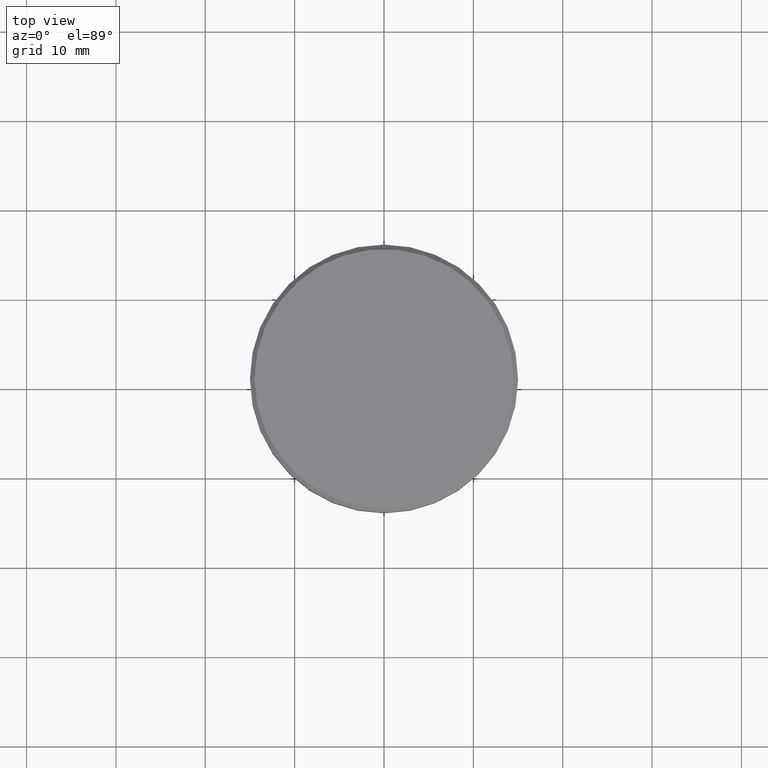
[diagram: clean part render]
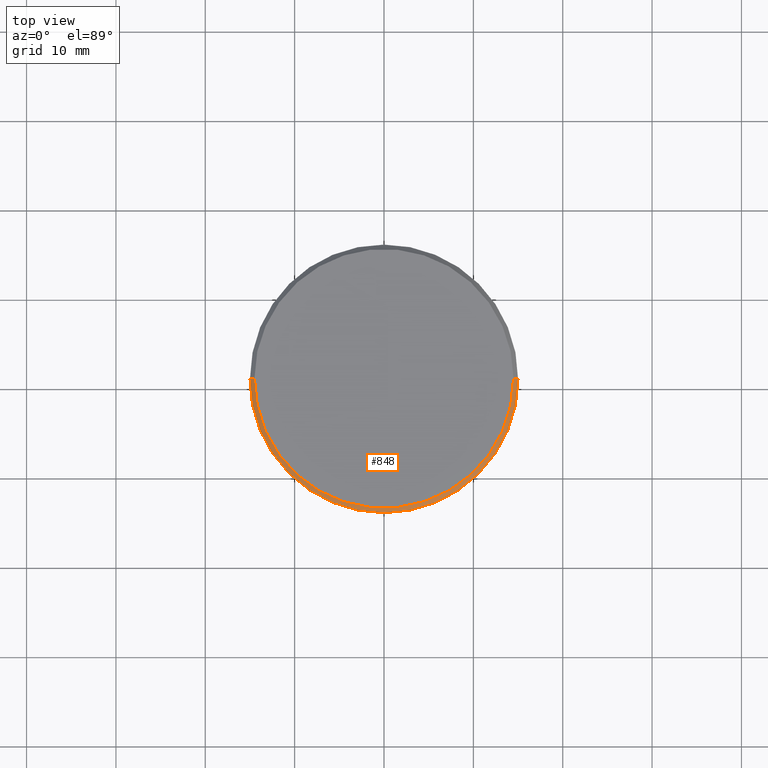
[diagram: same view with one face highlighted and labeled with its STEP entity id]
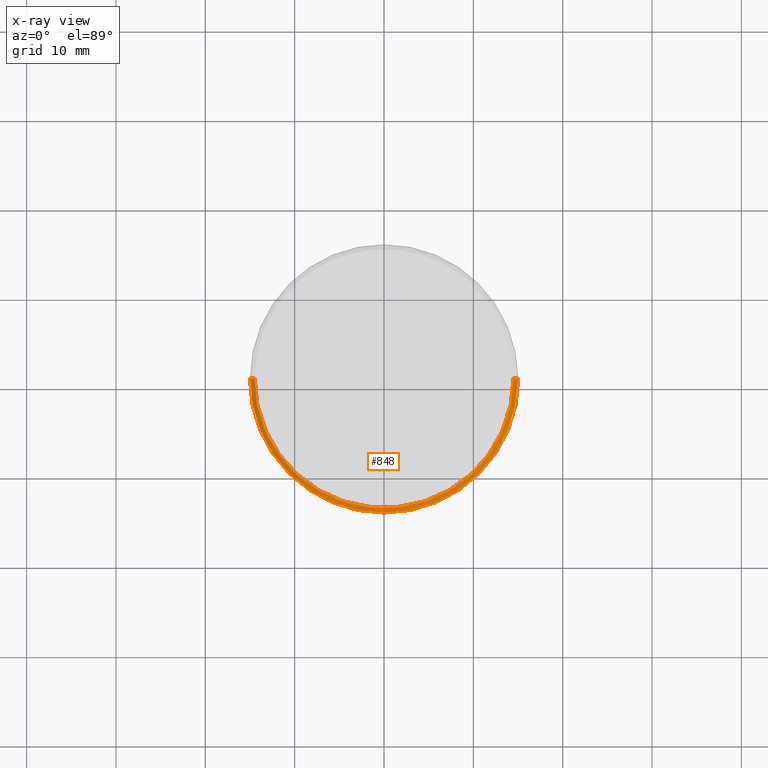
[diagram: x-ray of the same camera — body ghosted, the highlighted face saturated]
A machine part, top view. The second image highlights one B-rep face of the part: STEP entity #848.
The next image is the same camera in x-ray: the body ghosted, the highlighted face saturated — about 0% of this face is hidden behind the body in this view.
In plain terms, the highlighted conical surface has half-angle 45 deg.
Its self-contained STEP definition (entity closure, byte-faithful):
#43 = CARTESIAN_POINT ( 'NONE',  ( 0.000000000000000000, 0.000000000000000000, 0.000000000000000000 ) ) ;
#47 = CONICAL_SURFACE ( 'NONE', #865, 14.50000000000001066, 0.7853981633974466137 ) ;
#90 = EDGE_CURVE ( 'NONE', #880, #951, #148, .T. ) ;
#113 = DIRECTION ( 'NONE',  ( -1.000000000000000000, 0.000000000000000000, 0.000000000000000000 ) ) ;
#148 = LINE ( 'NONE', #356, #193 ) ;
#193 = VECTOR ( 'NONE', #810, 1000.000000000000000 ) ;
#226 = ORIENTED_EDGE ( 'NONE', *, *, #427, .F. ) ;
#253 = AXIS2_PLACEMENT_3D ( 'NONE', #890, #703, #515 ) ;
#323 = CARTESIAN_POINT ( 'NONE',  ( -14.50000000000001066, 0.000000000000000000, 0.000000000000000000 ) ) ;
#356 = CARTESIAN_POINT ( 'NONE',  ( -14.50000000000001066, 0.000000000000000000, 0.000000000000000000 ) ) ;
#382 = EDGE_CURVE ( 'NONE', #862, #1040, #658, .T. ) ;
#394 = ORIENTED_EDGE ( 'NONE', *, *, #537, .F. ) ;
#397 = DIRECTION ( 'NONE',  ( 1.000000000000000000, 0.000000000000000000, 0.000000000000000000 ) ) ;
#406 = FACE_OUTER_BOUND ( 'NONE', #423, .T. ) ;
#423 = EDGE_LOOP ( 'NONE', ( #709, #226, #855, #394 ) ) ;
#427 = EDGE_CURVE ( 'NONE', #880, #862, #879, .T. ) ;
#466 = AXIS2_PLACEMENT_3D ( 'NONE', #599, #581, #397 ) ;
#515 = DIRECTION ( 'NONE',  ( 1.000000000000000000, 0.000000000000000000, 0.000000000000000000 ) ) ;
#537 = EDGE_CURVE ( 'NONE', #1040, #951, #673, .T. ) ;
#581 = DIRECTION ( 'NONE',  ( -0.000000000000000000, -0.000000000000000000, 1.000000000000000000 ) ) ;
#588 = CARTESIAN_POINT ( 'NONE',  ( 14.50000000000001066, 1.775737858763663593E-15, 0.000000000000000000 ) ) ;
#599 = CARTESIAN_POINT ( 'NONE',  ( 0.000000000000000000, 0.000000000000000000, 0.000000000000000000 ) ) ;
#658 = LINE ( 'NONE', #588, #711 ) ;
#673 = CIRCLE ( 'NONE', #253, 15.00000000000000000 ) ;
#703 = DIRECTION ( 'NONE',  ( 0.000000000000000000, 0.000000000000000000, -1.000000000000000000 ) ) ;
#709 = ORIENTED_EDGE ( 'NONE', *, *, #382, .F. ) ;
#711 = VECTOR ( 'NONE', #837, 1000.000000000000000 ) ;
#810 = DIRECTION ( 'NONE',  ( -0.7071067811865463515, 0.000000000000000000, -0.7071067811865487940 ) ) ;
#837 = DIRECTION ( 'NONE',  ( 0.7071067811865463515, 8.659560562354918067E-17, -0.7071067811865487940 ) ) ;
#845 = CARTESIAN_POINT ( 'NONE',  ( 14.50000000000001066, 1.806354028742346591E-15, 0.000000000000000000 ) ) ;
#848 = ADVANCED_FACE ( 'NONE', ( #406 ), #47, .T. ) ;
#855 = ORIENTED_EDGE ( 'NONE', *, *, #90, .T. ) ;
#862 = VERTEX_POINT ( 'NONE', #845 ) ;
#865 = AXIS2_PLACEMENT_3D ( 'NONE', #43, #1119, #113 ) ;
#868 = CARTESIAN_POINT ( 'NONE',  ( -15.00000000000000000, 1.836970198721029589E-15, -0.4999999999999900080 ) ) ;
#879 = CIRCLE ( 'NONE', #466, 14.50000000000001066 ) ;
#880 = VERTEX_POINT ( 'NONE', #323 ) ;
#890 = CARTESIAN_POINT ( 'NONE',  ( 0.000000000000000000, 0.000000000000000000, -0.4999999999999900080 ) ) ;
#951 = VERTEX_POINT ( 'NONE', #868 ) ;
#1040 = VERTEX_POINT ( 'NONE', #1055 ) ;
#1055 = CARTESIAN_POINT ( 'NONE',  ( 15.00000000000000000, 0.000000000000000000, -0.4999999999999900080 ) ) ;
#1119 = DIRECTION ( 'NONE',  ( 0.000000000000000000, 0.000000000000000000, -1.000000000000000000 ) ) ;